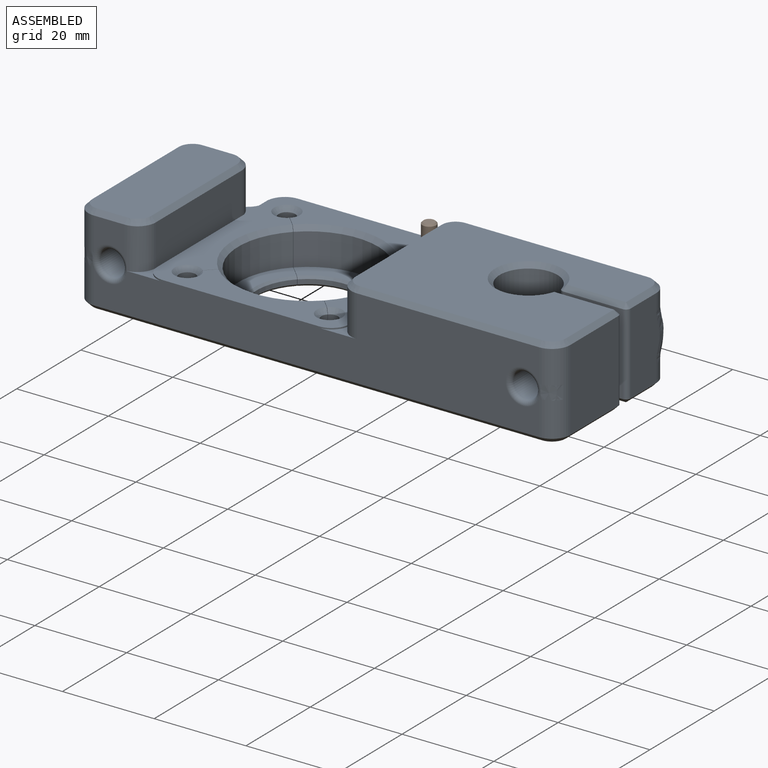
[diagram: assembled view]
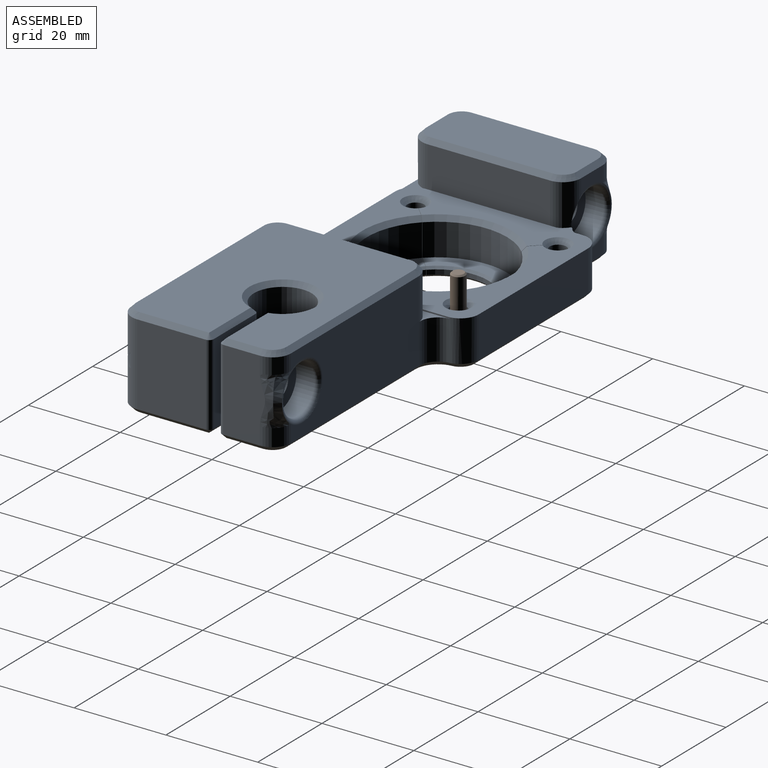
[diagram: assembled view, second angle]
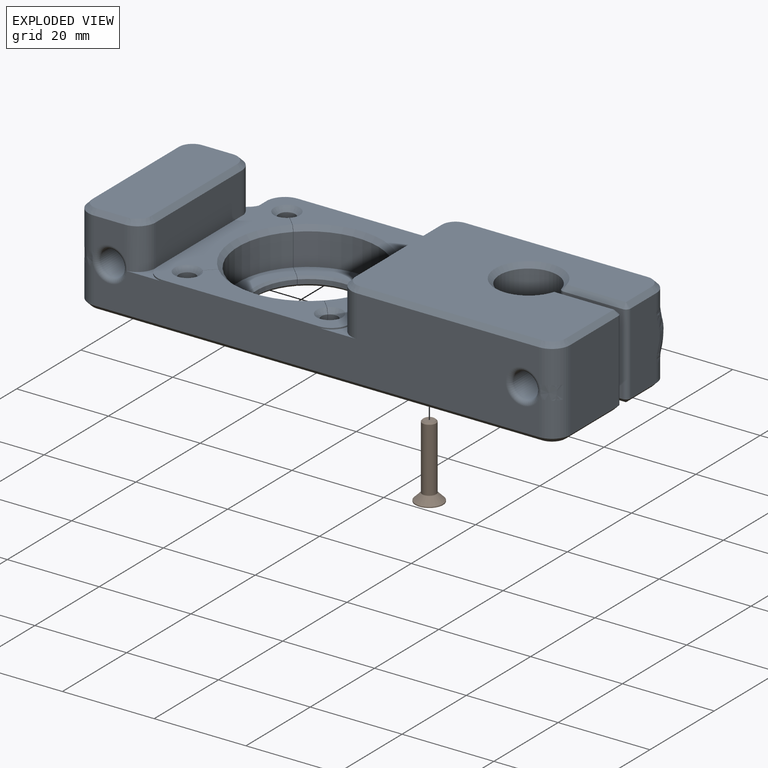
[diagram: exploded view]
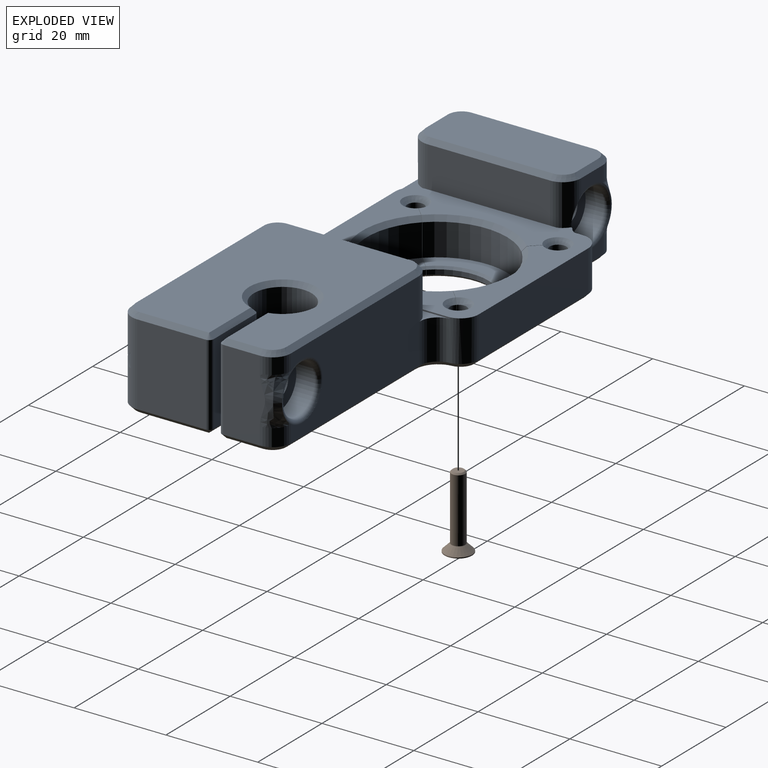
[diagram: exploded view, second angle]
ASSEMBLY  parts=2 mates=2
PART A: 151 faces, bbox 105.9x43.4x20.5 mm
  f0: cylinder r=15.3mm len=21.6mm, axis (0,0,1), area 167.9mm2, adj f8,f16,f144,f146
  f1: cylinder r=15.3mm len=21.6mm, axis (0,0,1), area 167.9mm2, adj f9,f17,f143,f150
  f2: cylinder r=15.3mm len=21.6mm, axis (0,0,1), area 167.9mm2, adj f10,f18,f145,f147
  f3: plane 103x40mm, normal (0,0,-1), area 2826.5mm2, adj f23,f24,f25,f26,f27,f28,f92,f93
  f4: cylinder r=11.25mm len=15.87mm, axis (0,0,-1), area 17.6mm2, adj f20,f23,f144,f146
  f5: cylinder r=11.25mm len=15.87mm, axis (0,0,-1), area 17.6mm2, adj f21,f24,f143,f150
  f6: cylinder r=11.25mm len=15.87mm, axis (0,0,-1), area 17.6mm2, adj f22,f25,f145,f147
  f7: plane 42x42mm, normal (0,0,1), area 816.5mm2, adj f14,f15,f16,f17,f18,f19,f32,f38
  f8: plane 21.6x6.97mm, normal (0,0,1), area 75.2mm2, adj f0,f20,f144,f146
  f9: plane 21.6x6.97mm, normal (0,0,1), area 75.2mm2, adj f1,f21,f143,f150
  f10: plane 21.6x6.97mm, normal (0,0,1), area 75.2mm2, adj f2,f22,f145,f147
  f11: cylinder r=1.8mm len=7mm, axis (0,0,-1), area 78.8mm2, adj f14,f28,f143,f144
  f12: cylinder r=1.8mm len=7mm, axis (0,0,-1), area 78.8mm2, adj f15,f27,f145,f146
  f13: cylinder r=1.8mm len=7mm, axis (0,0,-1), area 78.8mm2, adj f19,f26,f149,f150
  f14: cone r=1.8mm half-angle=45deg, axis (0,0,1), area 20.4mm2, adj f7,f11,f143,f144
  f15: cone r=1.8mm half-angle=45deg, axis (0,0,1), area 20.4mm2, adj f7,f12,f145,f146
  f16: cone r=15.3mm half-angle=45deg, axis (0,0,1), area 35mm2, adj f0,f7,f144,f146
  f17: cone r=15.3mm half-angle=45deg, axis (0,0,1), area 35mm2, adj f1,f7,f143,f150
  f18: cone r=15.3mm half-angle=45deg, axis (0,0,1), area 35mm2, adj f2,f7,f145,f147
  f19: cone r=1.8mm half-angle=45deg, axis (0,0,1), area 20.4mm2, adj f7,f13,f149,f150
  f20: cone r=11.25mm half-angle=45deg, axis (0,0,1), area 12.7mm2, adj f4,f8,f144,f146
  f21: cone r=11.25mm half-angle=45deg, axis (0,0,1), area 12.7mm2, adj f5,f9,f143,f150
  f22: cone r=11.25mm half-angle=45deg, axis (0,0,1), area 12.7mm2, adj f6,f10,f145,f147
  f23: cone r=11.75mm half-angle=45deg, axis (0,0,-1), area 12.7mm2, adj f3,f4,f144,f146
  f24: cone r=11.75mm half-angle=45deg, axis (0,0,-1), area 12.7mm2, adj f3,f5,f143,f150
  f25: cone r=11.75mm half-angle=45deg, axis (0,0,-1), area 12.7mm2, adj f3,f6,f145,f147
  f26: cone r=3.8mm half-angle=45deg, axis (0,0,-1), area 49.6mm2, adj f3,f13,f149,f150
  f27: cone r=3.8mm half-angle=45deg, axis (0,0,-1), area 49.6mm2, adj f3,f12,f145,f146
  f28: cone r=3.8mm half-angle=45deg, axis (0,0,-1), area 49.6mm2, adj f3,f11,f143,f144
  f29: plane 6.7x3.46mm, normal (0,1,0), area 18.2mm2, adj f63,f79,f82,f133
  f30: plane 7.22x6.7mm, normal (0,-1,0), area 36.7mm2, adj f64,f72,f76,f138
  f31: cylinder r=15.3mm len=21.6mm, axis (0,0,1), area 167.9mm2, adj f41,f114,f148,f149
  f32: plane 97x17.7mm, normal (0,-1,0), area 1146.4mm2, adj f7,f48,f49,f61,f64,f70,f73,f75
  f33: plane 17.7x14.96mm, normal (1,0,0), area 264.6mm2, adj f65,f73,f74,f75,f111,f116
  f34: plane 17.7x12.91mm, normal (0,-1,0), area 203.9mm2, adj f50,f60,f67,f99,f127
  f35: plane 17.7x9.1mm, normal (1,0,0), area 146.3mm2, adj f60,f83,f84,f85,f95,f131
  f36: plane 27.86x17.7mm, normal (-1,0,0), area 478.2mm2, adj f70,f71,f72,f80,f81,f82,f108,f137
  f37: cylinder r=11.25mm len=15.87mm, axis (0,0,-1), area 17.6mm2, adj f140,f141,f148,f149
  f38: plane 34x0.3mm, normal (1,0,0), area 10.2mm2, adj f7,f49,f68,f91
  f39: plane 34x9mm, normal (0,1,0), area 306mm2, adj f7,f68,f69,f98
  f40: plane 34x1.34mm, normal (-1,0,0), area 10.3mm2, adj f7,f48,f69,f88,f90
  f41: plane 21.6x6.97mm, normal (0,0,1), area 75.2mm2, adj f31,f140,f148,f149
  f42: cylinder r=2.8mm len=28.7mm, axis (0,1,0), area 504.9mm2, adj f43,f64
  f43: plane 10.6x10.6mm, normal (0,1,0), area 63.6mm2, adj f42,f44
  f44: cylinder r=5.3mm len=10.6mm, axis (0,1,0), area 133.2mm2, adj f43,f63
  f45: plane 32.7x12.7mm, normal (0,0,1), area 407.6mm2, adj f132,f133,f134,f135,f136,f137,f138,f139
  f46: plane 26.7x9mm, normal (1,0,0), area 240.3mm2, adj f48,f76,f79,f134
  f47: plane 7.03x3.78mm, normal (0,1,0), area 21.4mm2, adj f63,f80,f86,f104
  f48: plane 37.91x7.97mm, normal (0,0,1), area 21.6mm2, adj f32,f40,f46,f63,f64,f76,f79,f88
  f49: plane 38.35x8.3mm, normal (0,0,1), area 24mm2, adj f32,f38,f54,f55,f68,f77,f78,f89
  f50: cylinder r=2.8mm len=7.95mm, axis (0,1,0), area 139.9mm2, adj f34,f57
  f51: plane 45.7x32.7mm, normal (0,0,1), area 1270.7mm2, adj f116,f118,f119,f120,f122,f123,f124,f126
  f52: plane 17.7x12.99mm, normal (0,1,0), area 205.4mm2, adj f56,f65,f66,f107,f119
  f53: cylinder r=6.3mm len=17.7mm, axis (0,0,-1), area 641.9mm2, adj f66,f67,f103,f123
  f54: plane 40.03x17.7mm, normal (0,1,0), area 601.5mm2, adj f49,f62,f78,f83,f85,f89,f92,f128
  f55: plane 26.7x9mm, normal (-1,0,0), area 240.3mm2, adj f49,f77,f78,f124
  f56: cylinder r=2.8mm len=18.95mm, axis (0,1,0), area 333.4mm2, adj f52,f61
  f57: plane 10.6x10.6mm, normal (0,1,0), area 63.6mm2, adj f50,f58
  f58: cylinder r=5.3mm len=10.6mm, axis (0,1,0), area 133.2mm2, adj f57,f62
  f59: cylinder r=1.8mm len=7mm, axis (0,0,-1), area 78.8mm2, adj f115,f142,f147,f148
  f60: cylinder r=1mm len=17.7mm, axis (0,0,1), area 27.8mm2, adj f34,f35,f97,f129
  f61: torus R=3.8mm, axis (0,-1,0), area 31.2mm2, adj f32,f56,f74
  f62: torus R=6.3mm, axis (0,1,0), area 55.9mm2, adj f54,f58,f84
  f63: torus R=6.3mm, axis (0,-1,0), area 48.5mm2, adj f29,f44,f47,f48,f79,f81,f87,f88
  f64: torus R=3.8mm, axis (0,-1,0), area 30.9mm2, adj f30,f32,f42,f48,f71,f76
  f65: cylinder r=1mm len=17.7mm, axis (0,0,-1), area 27.8mm2, adj f33,f52,f109,f117
  f66: cylinder r=1mm len=17.7mm, axis (0,0,-1), area 22.8mm2, adj f52,f53,f105,f121
  f67: cylinder r=1mm len=17.7mm, axis (0,0,-1), area 23.5mm2, adj f34,f53,f101,f125
  f68: cylinder r=4mm len=9mm, axis (0,0,1), area 53.5mm2, adj f7,f38,f39,f49,f89,f96
  f69: cylinder r=4mm len=9mm, axis (0,0,-1), area 54.5mm2, adj f7,f39,f40,f86,f87,f100
  f70: cylinder r=4mm len=7.52mm, axis (0,0,-1), area 47.3mm2, adj f32,f36,f71,f110
  f71: bspline ~4.24x4.22mm, area 18mm2, adj f36,f64,f70,f72
  f72: cylinder r=4mm len=7.22mm, axis (0,0,-1), area 45.4mm2, adj f30,f36,f71,f139
  f73: cylinder r=4mm len=7.52mm, axis (0,0,1), area 47.3mm2, adj f32,f33,f74,f113
  f74: bspline ~4.81x4.68mm, area 18mm2, adj f33,f61,f73,f75
  f75: cylinder r=4mm len=7.22mm, axis (0,0,1), area 45.4mm2, adj f32,f33,f74,f118
  f76: cylinder r=4mm len=9mm, axis (0,0,-1), area 55.9mm2, adj f30,f46,f48,f64,f136
  f77: cylinder r=4mm len=9mm, axis (0,0,1), area 56.5mm2, adj f32,f49,f55,f122
  f78: cylinder r=4mm len=9mm, axis (0,0,-1), area 56.5mm2, adj f49,f54,f55,f126
  f79: cylinder r=4mm len=9mm, axis (0,0,-1), area 47.7mm2, adj f29,f46,f48,f63,f132
  f80: cylinder r=4mm len=4mm, axis (0,0,1), area 23.6mm2, adj f36,f47,f81,f106
  f81: bspline ~10.48x4mm, area 45mm2, adj f36,f63,f80,f82
  f82: cylinder r=4mm len=4mm, axis (0,0,1), area 21.8mm2, adj f29,f36,f81,f135
  f83: cylinder r=4mm len=4mm, axis (0,0,1), area 23.6mm2, adj f35,f54,f84,f93
  f84: bspline ~10.48x4mm, area 45mm2, adj f35,f62,f83,f85
  f85: cylinder r=4mm len=4mm, axis (0,0,1), area 21.8mm2, adj f35,f54,f84,f130
  f86: cylinder r=4mm len=3.98mm, axis (0,0,-1), area 22.4mm2, adj f47,f69,f87,f102
  f87: bspline ~6.27x4.49mm, area 17.2mm2, adj f63,f69,f86,f88
  f88: bspline ~3.63x3.48mm, area 5.8mm2, adj f40,f48,f63,f87
  f89: cylinder r=4mm len=8.7mm, axis (0,0,1), area 51.6mm2, adj f49,f54,f68,f94
  f90: cylinder r=4mm len=4mm, axis (0,0,-1), area 1.9mm2, adj f7,f32,f40,f48
  f91: cylinder r=4mm len=4mm, axis (0,0,1), area 1.9mm2, adj f7,f32,f38,f49
  f92: plane 40.03x1mm, normal (0,0.71,-0.71), area 56.6mm2, adj f3,f54,f93,f94
  f93: cone r=3mm half-angle=45deg, axis (0,0,1), area 7.8mm2, adj f3,f83,f92,f95
  f94: cone r=5mm half-angle=45deg, axis (0,0,-1), area 9.4mm2, adj f3,f89,f92,f96
  f95: plane 7.95x1mm, normal (0.71,0,-0.71), area 11.2mm2, adj f3,f35,f93,f97
  f96: cone r=3mm half-angle=45deg, axis (0,0,1), area 7.3mm2, adj f3,f68,f94,f98
  f97: cone r=1mm half-angle=45deg, axis (0,0,1), area 1.1mm2, adj f60,f95,f99
  f98: plane 34x1mm, normal (0,0.71,-0.71), area 48.1mm2, adj f3,f39,f96,f100
  f99: plane 12.91x1mm, normal (0,-0.71,-0.71), area 18.3mm2, adj f3,f34,f97,f101
  f100: cone r=3mm half-angle=45deg, axis (0,0,1), area 7.3mm2, adj f3,f69,f98,f102
  f101: cone r=1mm half-angle=45deg, axis (0,0,1), area 0.9mm2, adj f67,f99,f103
  f102: cone r=5mm half-angle=45deg, axis (0,0,-1), area 9.4mm2, adj f3,f86,f100,f104
  f103: cone r=7.3mm half-angle=45deg, axis (0,0,-1), area 55.4mm2, adj f3,f53,f101,f105
  f104: plane 7.03x1mm, normal (0,0.71,-0.71), area 9.9mm2, adj f3,f47,f102,f106
  f105: cone r=1mm half-angle=45deg, axis (0,0,1), area 1.3mm2, adj f66,f103,f107
  f106: cone r=3mm half-angle=45deg, axis (0,0,1), area 7.8mm2, adj f3,f80,f104,f108
  f107: plane 13.76x1.77mm, normal (0,0.71,-0.71), area 18.4mm2, adj f3,f52,f105,f109
  f108: plane 26.7x1mm, normal (-0.71,0,-0.71), area 37.8mm2, adj f3,f36,f106,f110
  f109: cone r=1mm half-angle=45deg, axis (0,0,1), area 0.7mm2, adj f65,f107,f111
  f110: cone r=3mm half-angle=45deg, axis (0,0,1), area 7.8mm2, adj f3,f70,f108,f112
  f111: plane 14.95x1mm, normal (0.71,0,-0.71), area 21.1mm2, adj f3,f33,f109,f113
  f112: plane 97x1mm, normal (0,-0.71,-0.71), area 137.2mm2, adj f3,f32,f110,f113
  f113: cone r=3mm half-angle=45deg, axis (0,0,1), area 7.8mm2, adj f3,f73,f111,f112
  f114: cone r=15.3mm half-angle=45deg, axis (0,0,1), area 35mm2, adj f7,f31,f148,f149
  f115: cone r=1.8mm half-angle=45deg, axis (0,0,1), area 20.4mm2, adj f7,f59,f147,f148
  f116: plane 14.95x1mm, normal (0.71,0,0.71), area 21.1mm2, adj f33,f51,f117,f118
  f117: cone r=1mm half-angle=45deg, axis (0,0,-1), area 1.5mm2, adj f65,f116,f119
  f118: cone r=3mm half-angle=45deg, axis (0,0,-1), area 7.8mm2, adj f51,f75,f116,f120
  f119: plane 13.76x1.77mm, normal (0,0.71,0.71), area 18.4mm2, adj f51,f52,f117,f121
  f120: plane 39.7x1mm, normal (0,-0.71,0.71), area 56.1mm2, adj f32,f51,f118,f122
  f121: cone r=1mm half-angle=45deg, axis (0,0,-1), area 0.6mm2, adj f66,f119,f123
  f122: cone r=3mm half-angle=45deg, axis (0,0,-1), area 7.8mm2, adj f51,f77,f120,f124
  f123: cone r=6.3mm half-angle=45deg, axis (0,0,1), area 55.4mm2, adj f51,f53,f121,f125
  f124: plane 26.7x1mm, normal (-0.71,0,0.71), area 37.8mm2, adj f51,f55,f122,f126
  f125: cone r=1mm half-angle=45deg, axis (0,0,-1), area 0.9mm2, adj f67,f123,f127
  f126: cone r=3mm half-angle=45deg, axis (0,0,-1), area 7.8mm2, adj f51,f78,f124,f128
  f127: plane 12.91x1mm, normal (0,-0.71,0.71), area 18.3mm2, adj f34,f51,f125,f129
  f128: plane 39.7x1mm, normal (0,0.71,0.71), area 56.1mm2, adj f51,f54,f126,f130
  f129: cone r=1mm half-angle=45deg, axis (0,0,-1), area 1.1mm2, adj f60,f127,f131
  f130: cone r=3mm half-angle=45deg, axis (0,0,-1), area 7.8mm2, adj f51,f85,f128,f131
  f131: plane 7.95x1mm, normal (0.71,0,0.71), area 11.2mm2, adj f35,f51,f129,f130
  f132: cone r=3mm half-angle=45deg, axis (0,0,-1), area 7.8mm2, adj f45,f79,f133,f134
  f133: plane 6.7x1mm, normal (0,0.71,0.71), area 9.5mm2, adj f29,f45,f132,f135
  f134: plane 26.7x1mm, normal (0.71,0,0.71), area 37.8mm2, adj f45,f46,f132,f136
  f135: cone r=3mm half-angle=45deg, axis (0,0,-1), area 7.8mm2, adj f45,f82,f133,f137
  f136: cone r=3mm half-angle=45deg, axis (0,0,-1), area 7.8mm2, adj f45,f76,f134,f138
  f137: plane 26.7x1mm, normal (-0.71,0,0.71), area 37.8mm2, adj f36,f45,f135,f139
  f138: plane 6.7x1mm, normal (0,-0.71,0.71), area 9.5mm2, adj f30,f45,f136,f139
  f139: cone r=3mm half-angle=45deg, axis (0,0,-1), area 7.8mm2, adj f45,f72,f137,f138
  f140: cone r=11.25mm half-angle=45deg, axis (0,0,1), area 12.7mm2, adj f37,f41,f148,f149
  f141: cone r=11.75mm half-angle=45deg, axis (0,0,-1), area 12.7mm2, adj f3,f37,f148,f149
  f142: cone r=3.8mm half-angle=45deg, axis (0,0,-1), area 49.6mm2, adj f3,f59,f147,f148
  f143: plane 10.01x6.28mm, normal (-0.71,0.71,0), area 53.1mm2, adj f1,f3,f5,f7,f9,f11,f14,f17
  f144: plane 10.01x6.28mm, normal (0.71,-0.71,0), area 53.1mm2, adj f0,f3,f4,f7,f8,f11,f14,f16
  f145: plane 10.01x6.28mm, normal (0.71,0.71,0), area 53.1mm2, adj f2,f3,f6,f7,f10,f12,f15,f18
  f146: plane 10.01x6.28mm, normal (-0.71,-0.71,0), area 53.1mm2, adj f0,f3,f4,f7,f8,f12,f15,f16
  f147: plane 10.01x6.28mm, normal (0.71,-0.71,0), area 53.1mm2, adj f2,f3,f6,f7,f10,f18,f22,f25
  f148: plane 10.01x6.28mm, normal (-0.71,0.71,0), area 53.1mm2, adj f3,f7,f31,f37,f41,f59,f114,f115
  f149: plane 10.01x6.28mm, normal (0.71,0.71,0), area 53.1mm2, adj f3,f7,f13,f19,f26,f31,f37,f41
  f150: plane 10.01x6.28mm, normal (-0.71,-0.71,0), area 53.1mm2, adj f1,f3,f5,f7,f9,f13,f17,f19
PART B: 21 faces, bbox 16x6x6 mm
  f0: cone r=1mm half-angle=45deg, axis (-1,0,0), area 2mm2, adj f1,f4,f5,f6,f7,f8,f9
  f1: plane 6x6mm, normal (-1,0,0), area 23.4mm2, adj f0,f2
  f2: cylinder r=3mm len=6mm, axis (1,0,0), area 3.8mm2, adj f1,f3
  f3: cone r=3mm half-angle=45deg, axis (-1,0,0), area 29.6mm2, adj f2,f17
  f4: plane 1.16x1.11mm, normal (0,0,-1), area 1.2mm2, adj f0,f5,f9,f12,f13
  f5: plane 1.11x1mm, normal (0,0.87,-0.5), area 1.2mm2, adj f0,f4,f6,f13,f14
  f6: plane 1.11x1mm, normal (0,0.87,0.5), area 1.2mm2, adj f0,f5,f7,f14,f15
  f7: plane 1.16x1.11mm, normal (0,0,1), area 1.2mm2, adj f0,f6,f8,f10,f15
  f8: plane 1.11x1mm, normal (0,-0.87,0.5), area 1.2mm2, adj f0,f7,f9,f10,f11
  f9: plane 1.11x1mm, normal (0,-0.87,-0.5), area 1.2mm2, adj f0,f4,f8,f11,f12
  f10: plane 0.87x0.5mm, normal (-1,0,0), area 0.1mm2, adj f7,f8,f16
  f11: plane 1x0.29mm, normal (-1,0,0), area 0.1mm2, adj f8,f9,f16
  f12: plane 0.87x0.5mm, normal (-1,0,0), area 0.1mm2, adj f4,f9,f16
  f13: plane 0.87x0.5mm, normal (-1,0,0), area 0.1mm2, adj f4,f5,f16
  f14: plane 1x0.29mm, normal (-1,0,0), area 0.1mm2, adj f5,f6,f16
  f15: plane 0.87x0.5mm, normal (-1,0,0), area 0.1mm2, adj f6,f7,f16
  f16: cone r=1mm half-angle=60deg, axis (-1,0,0), area 3.6mm2, adj f10,f11,f12,f13,f14,f15
  f17: torus R=1.6mm, axis (1,0,0), area 0.7mm2, adj f3,f20
  f18: plane 2.39x2.39mm, normal (1,0,0), area 4.5mm2, adj f19
  f19: cone r=1.5mm half-angle=45deg, axis (-1,0,0), area 3.7mm2, adj f18,f20
  f20: cylinder r=1.5mm len=13.95mm, axis (1,0,0), area 131.5mm2, adj f17,f19
PLACE A t=(-5.89,4.93,-1.64)mm fixed
PLACE B rot(axis=(0,-1,0),90deg) t=(9.61,20.43,-11.38)mm
MATE planar B.f17 <-> A.f11  axis (0,0,1) through (9.61,20.43,-9.64)mm
MATE slider B.f0 <-> A.f11  axis (0,0,1) through (9.61,20.43,-9.64)mm
